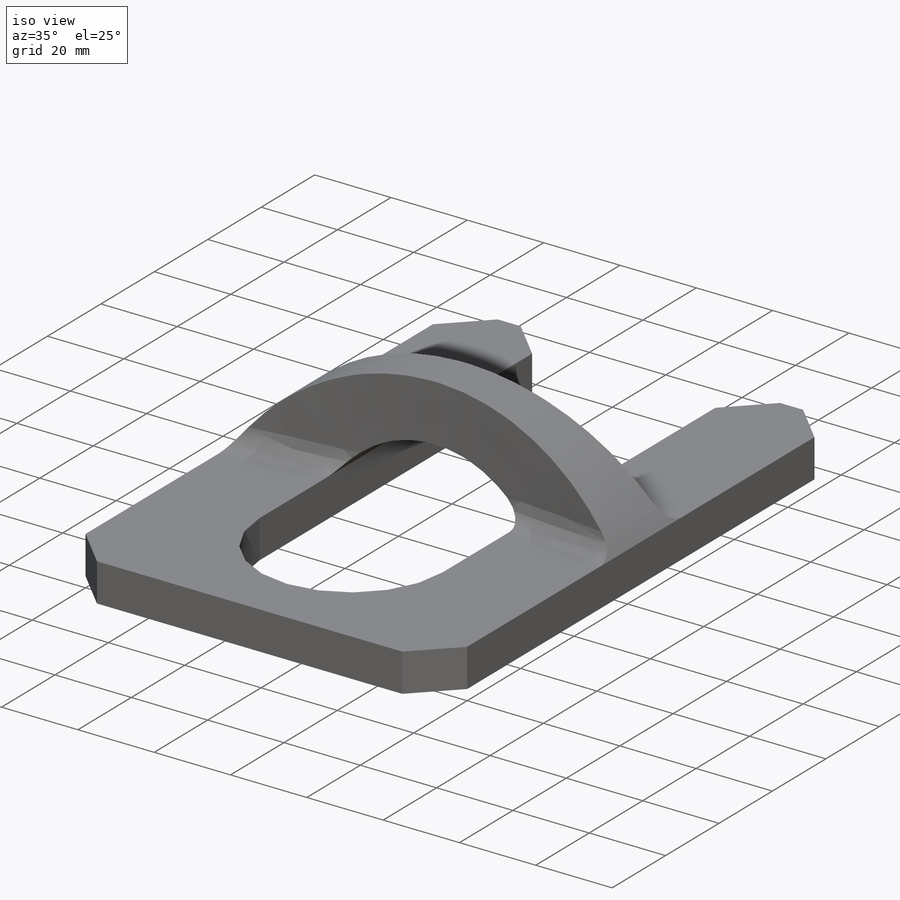
[diagram: iso view]
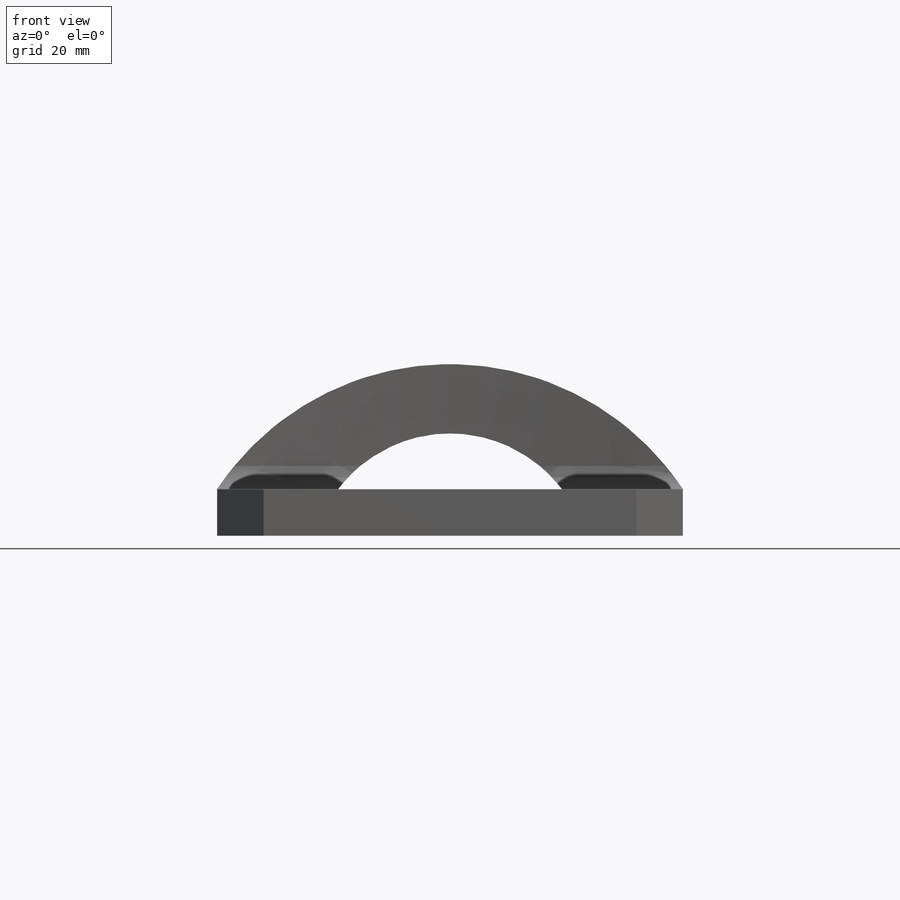
[diagram: front view]
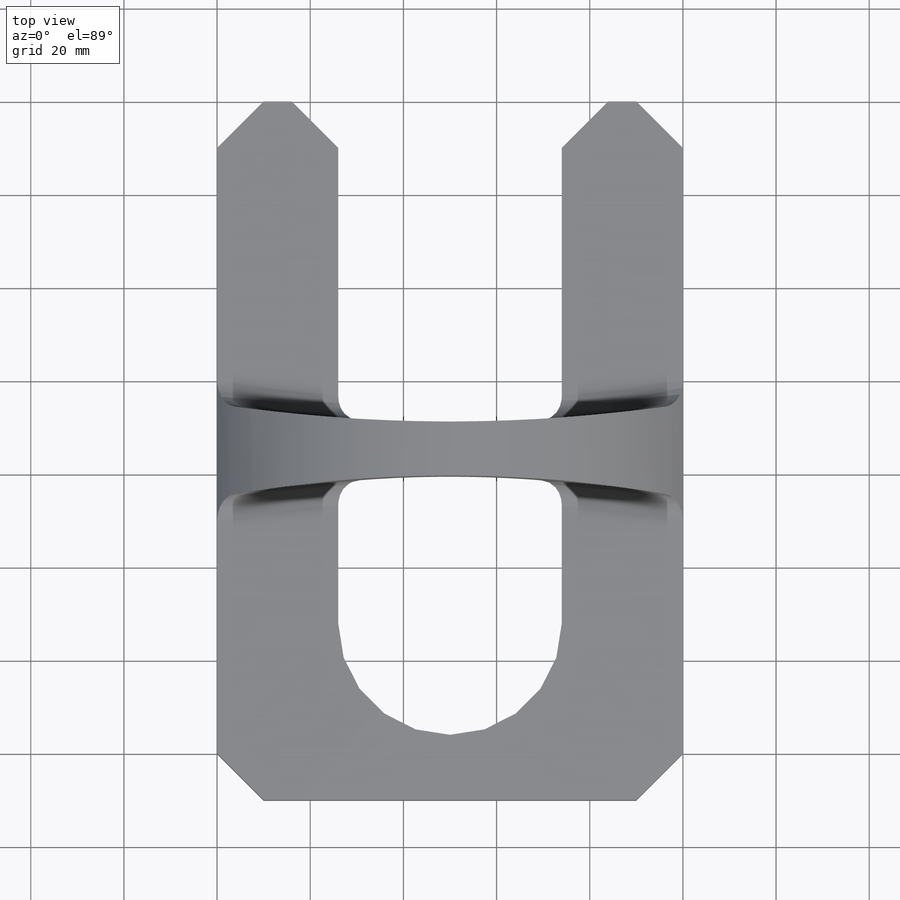
[diagram: top view]
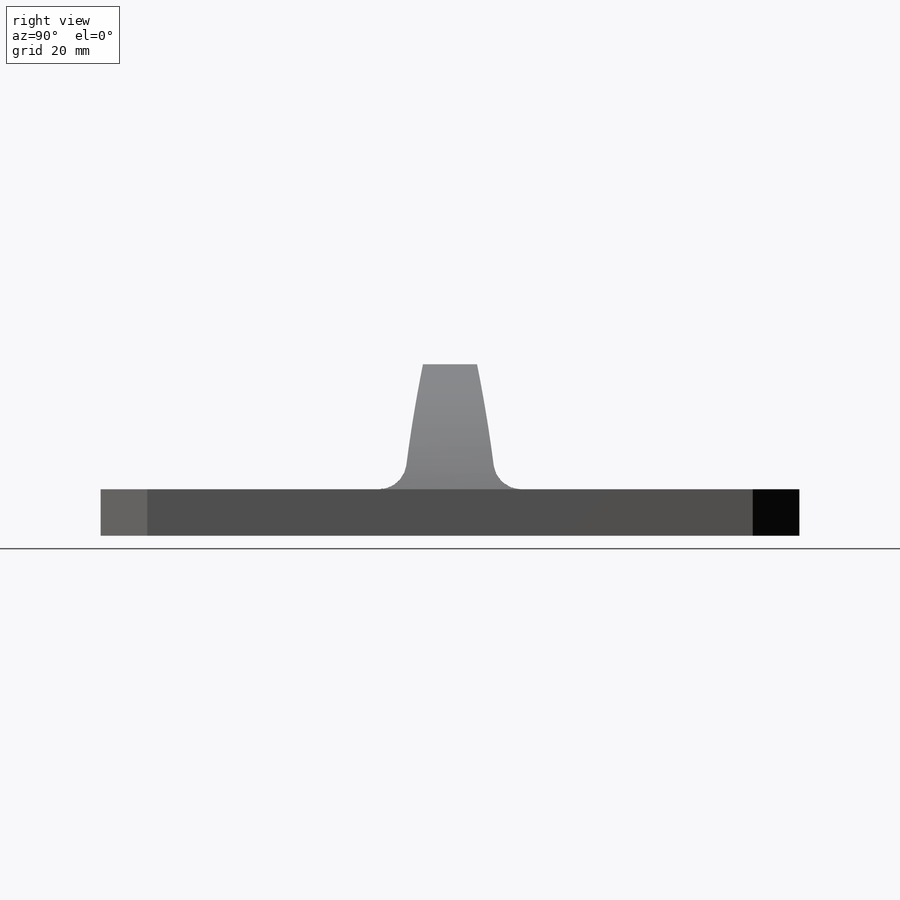
[diagram: right view]
SOLIDWORKS PART (.sldprt)
format: sldprt  version: not decoded by parser v0  size: 328,192 bytes
history: native  units: mm
features: plane x4, sketch x4, extrude x2, cut_extrude x2, material x1, chamfer x1, fillet x1 (+9 scaffold rows collapsed)
feature tree (24):
  scaffold x9  (default folders/planes/origin — collapsed)
  material  "Material <nicht festgelegt>"
  plane  "Vorne"
  plane  "Oben"
  plane  "Rechts"
  sketch  "Skizze1"  dims[D4=15.0mm D1=100.0mm D2=150.0mm D3=90.0mm]
  extrude  "Aufsatz-Linear austragen1"  Depth=10mm
  sketch  "Skizze4"  dims[D1=24.0mm D2=38.0mm]
  cut_extrude  "Schnitt-Linear austragen1"  [1 undecoded]
  plane  "Ebene1"
  sketch  "Skizze5"  dims[D1=60.0mm D2=30.0mm]
  extrude  "Aufsatz-Linear austragen2"  Depth=10mm
  sketch  "Skizze6"  dims[D1=300.0mm]
  cut_extrude  "Schnitt-Linear austragen2"  [1 undecoded]
  chamfer  "Fase1"  Distance=10mm Angle=45deg
  fillet  "Verrundung5"  Radius=5mm
decode coverage: 8 of 10 modeling features carry decoded parameters
note: 2 parameter values undecoded
note: suppression state not decoded; provenance and decode notes live in map.json
